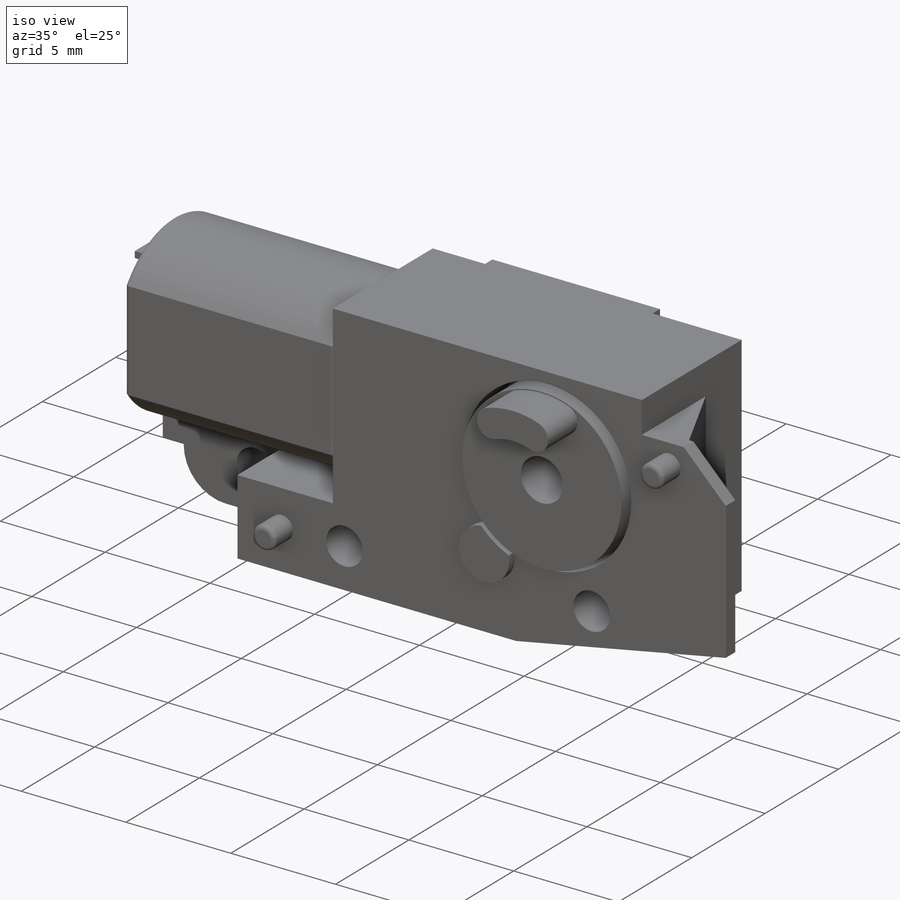
[diagram: iso view]
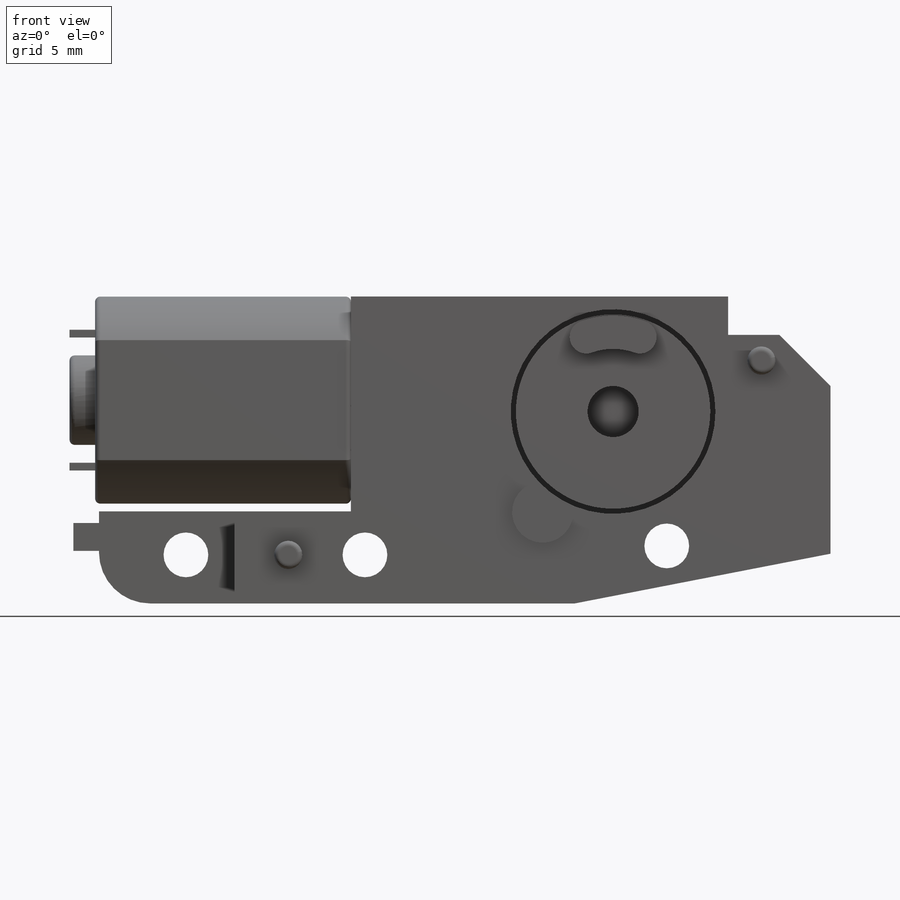
[diagram: front view]
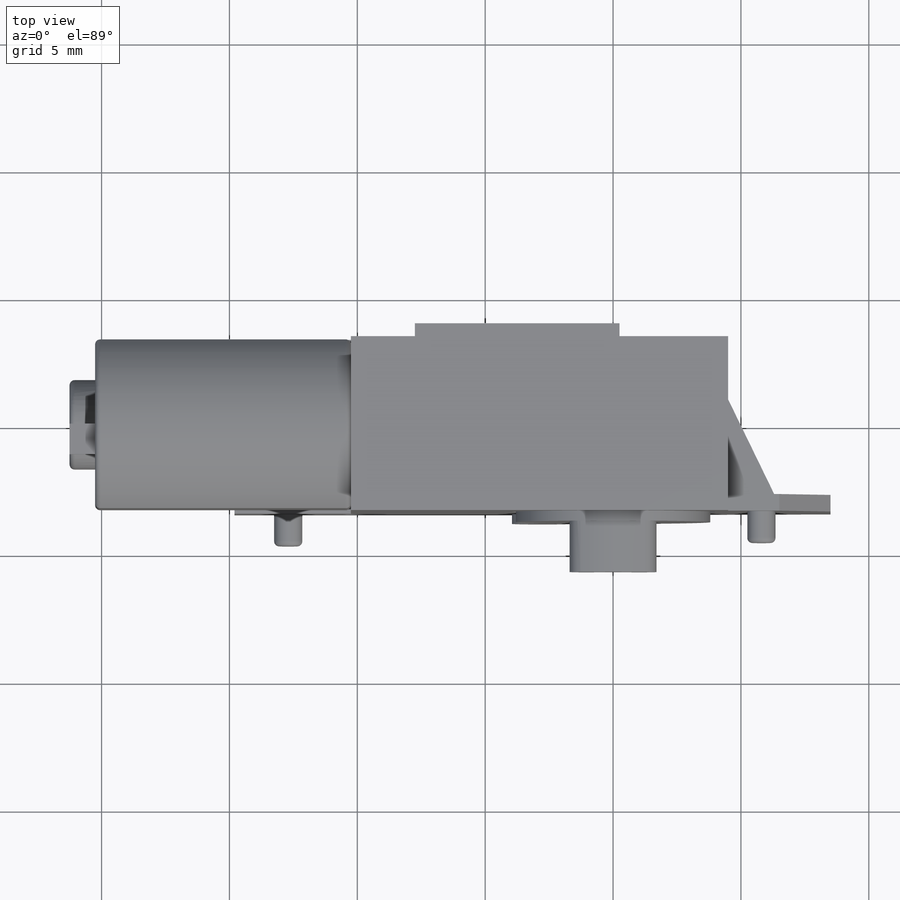
[diagram: top view]
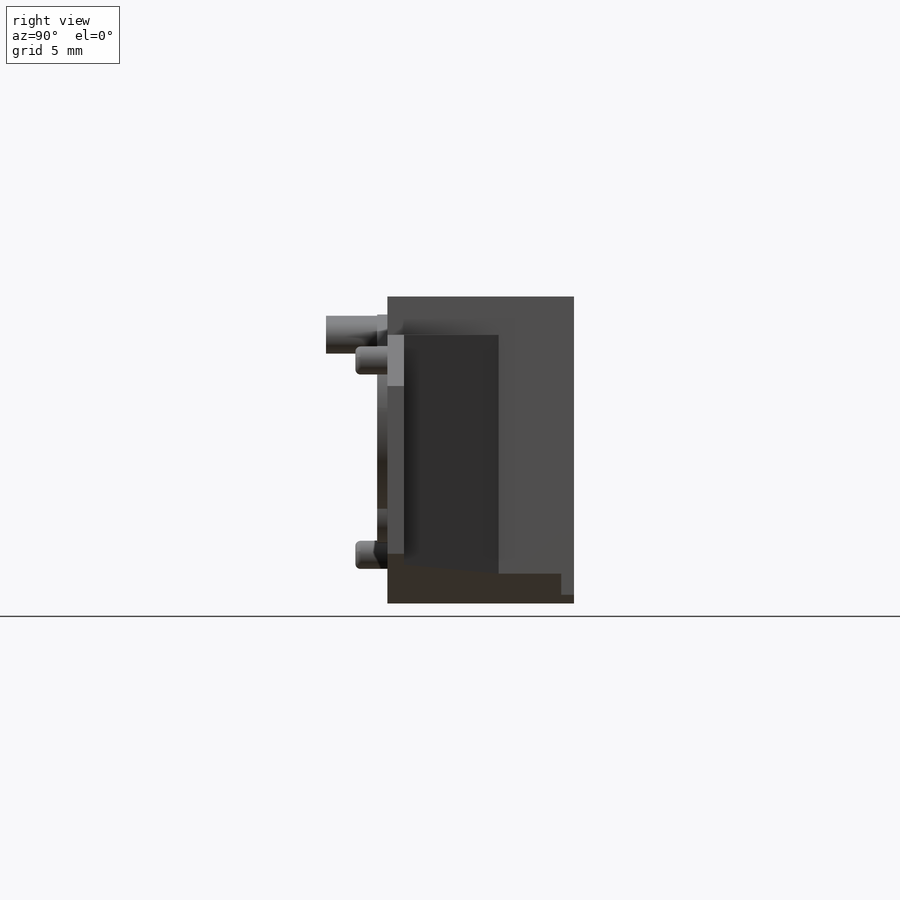
[diagram: right view]
SOLIDWORKS PART (.sldprt)
format: sldprt  version: not decoded by parser v0  size: 541,696 bytes
history: native  units: mm
features: sketch x17, extrude x13, cut_extrude x4, fillet x3, material x1 (+12 scaffold rows collapsed)
feature tree (50):
  scaffold x12  (default folders/planes/origin — collapsed)
  material  "Material <not specified>"
  sketch  "Sketch1"  dims[c1.D1=12.0mm c1.D2=4.5mm c1.D3=8.5mm c1.D4=1.5mm c1.D5=4.0mm c1.D6=4.5mm c2.D3=4.5mm c2.D4=6.0mm c2.D5=1.9mm c2.D6=~32.940414mm c3.D6=~17.571259deg c3.D7=14.75mm c3.D8=3.6mm c3.D9=19.3mm c3.D5=13.3mm c4.D5=11.0deg]
  extrude  "Boss-Extrude1"  Depth=6.8mm
  sketch  "Sketch2"  dims[D1=8.1mm D2=6.6mm]
  extrude  "Boss-Extrude2"  Depth=10mm
  fillet  "Fillet1"  Radius=0.2mm
  sketch  "Sketch3"  dims[D1=8.0mm]
  cut_extrude  "Cut-Extrude1"  Depth=2mm
  sketch  "Sketch4"  dims[D1=7.6mm]
  extrude  "Boss-Extrude3"  Depth=2.4mm
  sketch  "Sketch5"  dims[D1=2.0mm]
  cut_extrude  "Cut-Extrude2"  [1 undecoded]
  sketch  "Sketch6"  dims[D2=1.3mm D3=3.4mm D1=0.05mm]
  extrude  "Boss-Extrude4"  Depth=2mm
  sketch  "Sketch7"  dims[D1=1.5mm D2=8.5mm D3=2.0mm D4=2.0mm]
  extrude  "Boss-Extrude5"  Depth=0.65mm
  sketch  "Sketch8"  dims[D1=2.0mm D2=24.6mm D3=4.3mm]
  extrude  "Boss-Extrude6"  Depth=2.9mm
  sketch  "Sketch9"  dims[c1.D1=1.75mm c1.D4=1.75mm c1.D6=1.75mm c1.D7=1.75mm c1.D2=2.25mm c1.D3=2.1mm c2.D4=5.25mm c2.D5=1.9mm c2.D6=9.7mm c2.D7=7.0mm]
  cut_extrude  "Cut-Extrude3"  [1 undecoded]
  sketch  "Sketch10"  dims[D1=1.1mm D2=3.0mm D3=2.5mm D4=5.8mm D5=~6.556197mm]
  extrude  "Boss-Extrude7"  Depth=1.25mm
  fillet  "Fillet2"  Radius=0.2mm
  sketch  "Sketch11"  dims[c1.D2=2.4mm c1.D3=2.4mm c1.D5=8.0mm c1.D1=~6.181283mm c2.D1=35.0deg c2.D3=9.8mm c2.D4=4.8mm]
  extrude  "Boss-Extrude8"  Depth=0.4mm
  sketch  "Sketch12"  dims[c1.D1=1.0mm c1.D2=1.0mm c1.D3=~0.602858mm c2.D3=85.0deg]
  extrude  "Boss-Extrude9"  Depth=1mm
  sketch  "Sketch13"  dims[D1=3.5mm]
  extrude  "Boss-Extrude10"  Depth=1mm
  fillet  "Fillet3"  Radius=0.2mm
  sketch  "Sketch14"  dims[D1=5.5mm D2=0.3mm D3=1.2mm]
  extrude  "Boss-Extrude11"  Depth=1mm
  sketch  "Sketch15"  dims[D1=2.2mm D2=3.7mm]
  extrude  "Boss-Extrude12"  [1 undecoded]
  sketch  "Sketch16"  dims[D1=12.5mm D2=20.5mm]
  extrude  "Boss-Extrude13"  Depth=0.5mm
  sketch  "Sketch17"  dims[D1=14.5mm D2=19.0mm]
  cut_extrude  "Cut-Extrude4"  [1 undecoded]
decode coverage: 33 of 37 modeling features carry decoded parameters
note: ~ marks probable driven/reference dimensions
note: 4 parameter values undecoded
summary: no parameter record found for 4 features
note: suppression state not decoded; provenance and decode notes live in map.json
